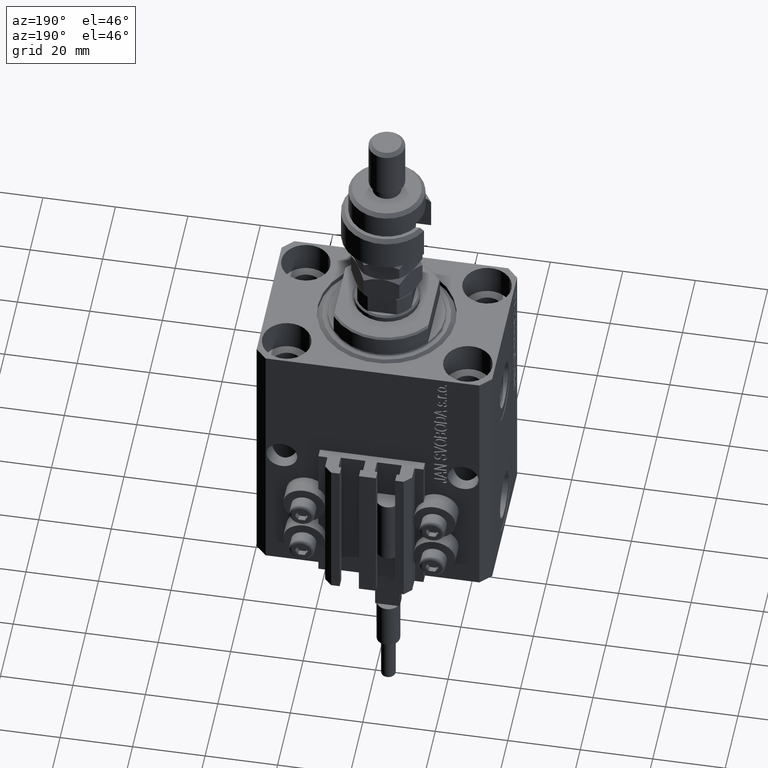
[diagram: clean part render]
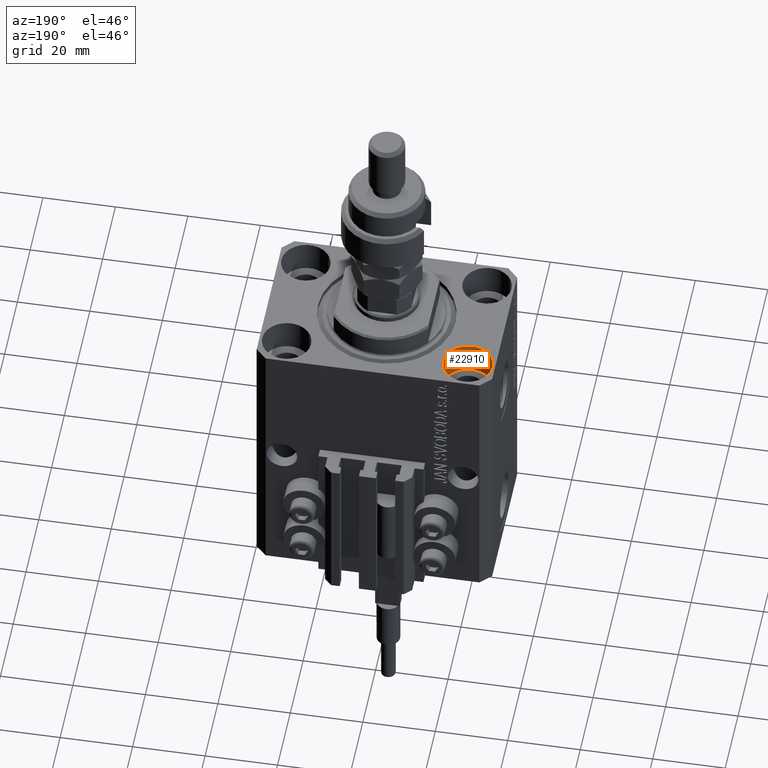
[diagram: same view with one face highlighted and labeled with its STEP entity id]
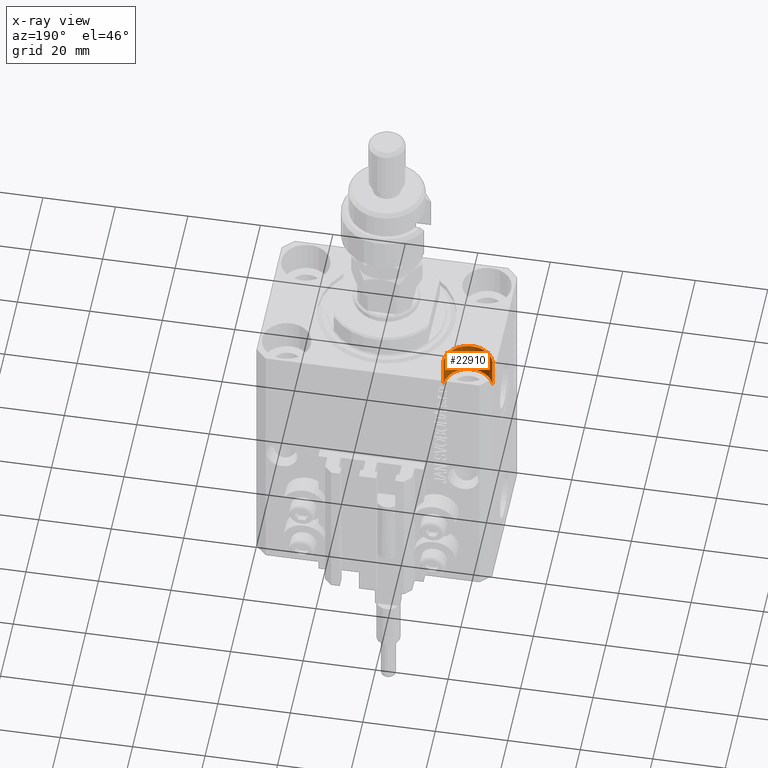
[diagram: x-ray of the same camera — body ghosted, the highlighted face saturated]
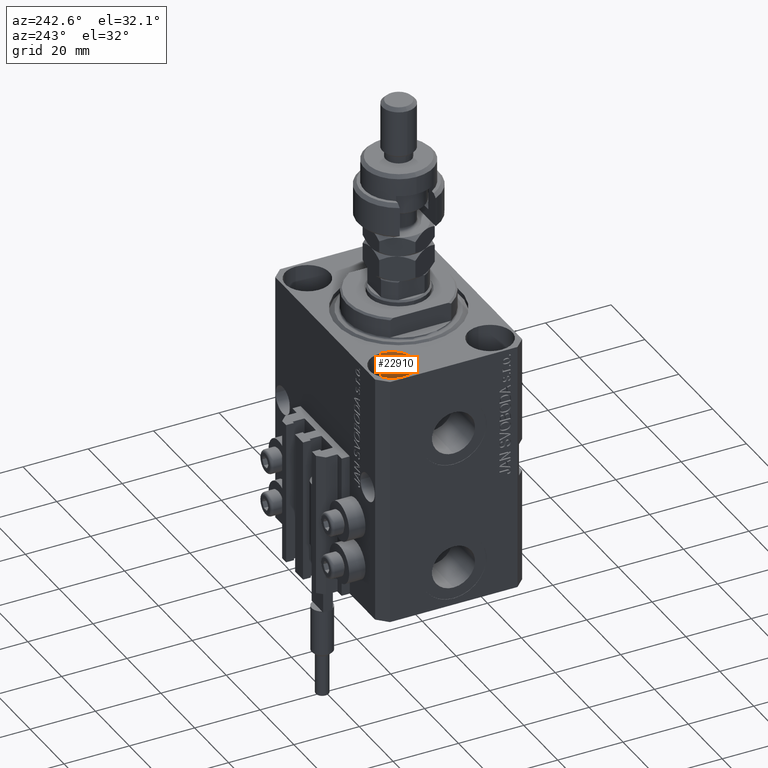
[diagram: same view with one face highlighted and labeled with its STEP entity id]
A machine part, auxiliary view. The second image highlights one B-rep face of the part: STEP entity #22910.
The next image is the same camera in x-ray: the body ghosted, the highlighted face saturated — about 0% of this face is hidden behind the body in this view.
A second angle (auxiliary view) of the same face is appended — the face is thin or edge-on in the first view.
In plain terms, the highlighted cylindrical surface (edge-blend (fillet) strip) has radius 6.75 mm, axis along (0, 0, 1).
Its self-contained STEP definition (entity closure, byte-faithful):
#464 = CARTESIAN_POINT ( 'NONE',  ( -18.24999999997747224, 15.00000000000000000, -9.000000000000000000 ) ) ;
#800 = ORIENTED_EDGE ( 'NONE', *, *, #20245, .T. ) ;
#5827 = DIRECTION ( 'NONE',  ( -0.000000000000000000, -0.000000000000000000, 1.000000000000000000 ) ) ;
#7990 = AXIS2_PLACEMENT_3D ( 'NONE', #33427, #13739, #14256 ) ;
#8064 = VECTOR ( 'NONE', #44272, 1000.000000000000000 ) ;
#9231 = CARTESIAN_POINT ( 'NONE',  ( -25.00000000000000355, 15.00000000000000000, -9.000000000000000000 ) ) ;
#9262 = VERTEX_POINT ( 'NONE', #44660 ) ;
#9971 = DIRECTION ( 'NONE',  ( -0.000000000000000000, -0.000000000000000000, 1.000000000000000000 ) ) ;
#11868 = ORIENTED_EDGE ( 'NONE', *, *, #48606, .F. ) ;
#12642 = LINE ( 'NONE', #28714, #8064 ) ;
#13739 = DIRECTION ( 'NONE',  ( 0.000000000000000000, 0.000000000000000000, 1.000000000000000000 ) ) ;
#13969 = AXIS2_PLACEMENT_3D ( 'NONE', #9231, #41138, #36987 ) ;
#14256 = DIRECTION ( 'NONE',  ( 1.000000000000000000, 0.000000000000000000, 0.000000000000000000 ) ) ;
#18036 = AXIS2_PLACEMENT_3D ( 'NONE', #49144, #5827, #44754 ) ;
#18703 = CARTESIAN_POINT ( 'NONE',  ( -31.75000000002253842, 15.00000000000000000, -9.000000000000000000 ) ) ;
#20245 = EDGE_CURVE ( 'NONE', #47112, #9262, #30371, .T. ) ;
#21345 = EDGE_LOOP ( 'NONE', ( #11868, #28497, #800, #23291 ) ) ;
#21899 = CARTESIAN_POINT ( 'NONE',  ( -31.75000000002253842, 15.00000000000000000, -9.000000000000000000 ) ) ;
#22910 = ADVANCED_FACE ( 'NONE', ( #44500 ), #36718, .F. ) ;
#23291 = ORIENTED_EDGE ( 'NONE', *, *, #26289, .F. ) ;
#24630 = VERTEX_POINT ( 'NONE', #464 ) ;
#26289 = EDGE_CURVE ( 'NONE', #24630, #9262, #12642, .T. ) ;
#28497 = ORIENTED_EDGE ( 'NONE', *, *, #30135, .T. ) ;
#28714 = CARTESIAN_POINT ( 'NONE',  ( -18.24999999997747224, 15.00000000000000000, -9.000000000000000000 ) ) ;
#30135 = EDGE_CURVE ( 'NONE', #46430, #47112, #34605, .T. ) ;
#30371 = CIRCLE ( 'NONE', #7990, 6.750000000022533087 ) ;
#31726 = VECTOR ( 'NONE', #9971, 1000.000000000000000 ) ;
#33427 = CARTESIAN_POINT ( 'NONE',  ( -25.00000000000000355, 15.00000000000000000, 0.000000000000000000 ) ) ;
#34605 = LINE ( 'NONE', #21899, #31726 ) ;
#36718 = CYLINDRICAL_SURFACE ( 'NONE', #18036, 6.750000000022533087 ) ;
#36987 = DIRECTION ( 'NONE',  ( 1.000000000000000000, 0.000000000000000000, 0.000000000000000000 ) ) ;
#38478 = CARTESIAN_POINT ( 'NONE',  ( -31.75000000002253842, 15.00000000000000000, 0.000000000000000000 ) ) ;
#41138 = DIRECTION ( 'NONE',  ( 0.000000000000000000, 0.000000000000000000, 1.000000000000000000 ) ) ;
#44272 = DIRECTION ( 'NONE',  ( -0.000000000000000000, -0.000000000000000000, 1.000000000000000000 ) ) ;
#44500 = FACE_OUTER_BOUND ( 'NONE', #21345, .T. ) ;
#44660 = CARTESIAN_POINT ( 'NONE',  ( -18.24999999997747224, 15.00000000000000000, 0.000000000000000000 ) ) ;
#44754 = DIRECTION ( 'NONE',  ( 1.000000000000000000, 0.000000000000000000, 0.000000000000000000 ) ) ;
#45416 = CIRCLE ( 'NONE', #13969, 6.750000000022533087 ) ;
#46430 = VERTEX_POINT ( 'NONE', #18703 ) ;
#47112 = VERTEX_POINT ( 'NONE', #38478 ) ;
#48606 = EDGE_CURVE ( 'NONE', #46430, #24630, #45416, .T. ) ;
#49144 = CARTESIAN_POINT ( 'NONE',  ( -25.00000000000000355, 15.00000000000000000, -9.000000000000000000 ) ) ;